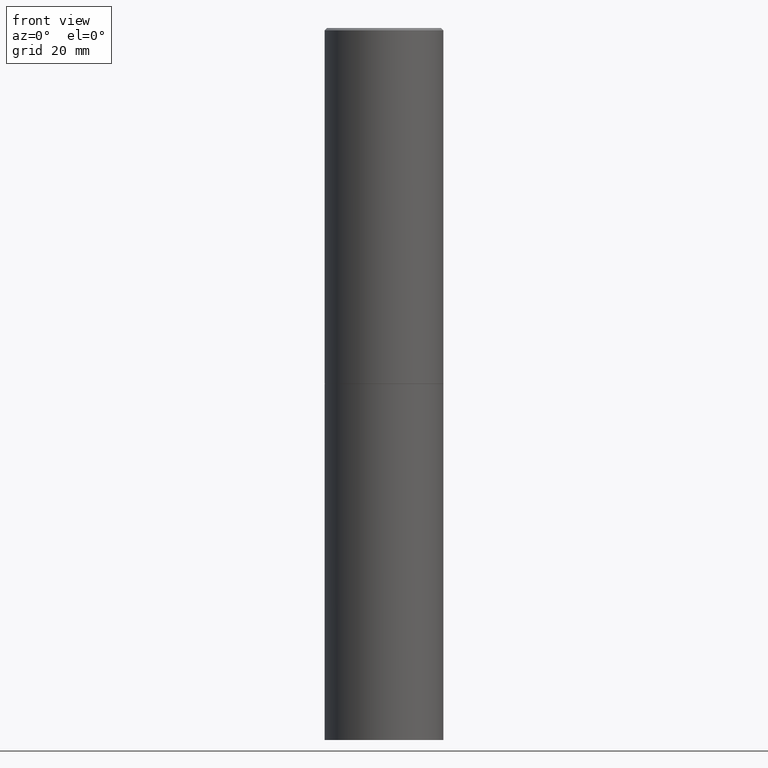
[diagram: clean part render]
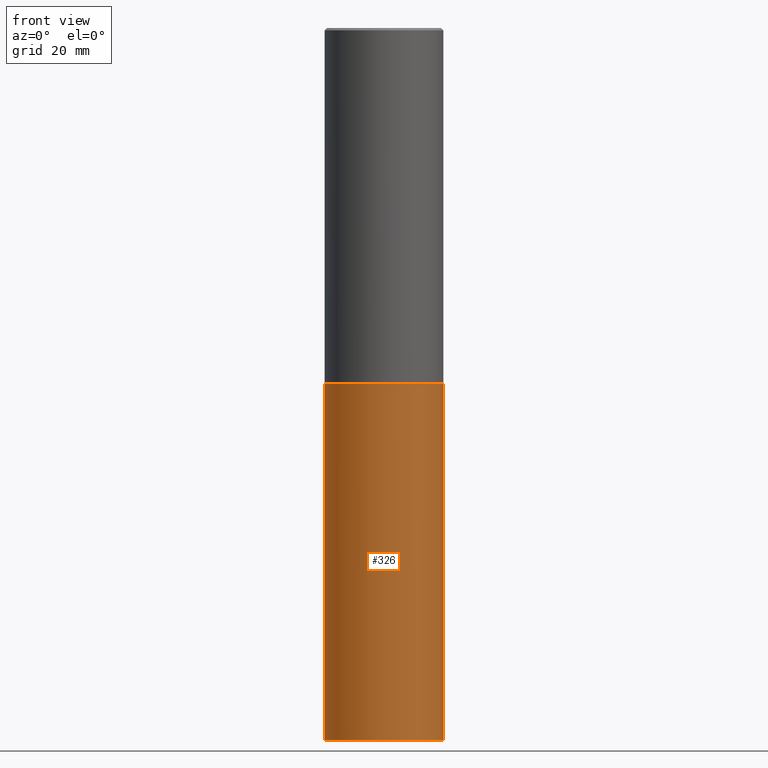
[diagram: same view with one face highlighted and labeled with its STEP entity id]
A machine part, front view. The second image highlights one B-rep face of the part: STEP entity #326.
In plain terms, the highlighted cylindrical surface (partial cylindrical patch) has radius 12.5006 mm, axis along (-0, 0, 1).
Its self-contained STEP definition (entity closure, byte-faithful):
#11 = AXIS2_PLACEMENT_3D ( 'NONE', #327, #305, #74 ) ;
#12 = VERTEX_POINT ( 'NONE', #309 ) ;
#19 = VERTEX_POINT ( 'NONE', #142 ) ;
#23 = AXIS2_PLACEMENT_3D ( 'NONE', #211, #73, #181 ) ;
#66 = CYLINDRICAL_SURFACE ( 'NONE', #23, 0.4921499999999999764 ) ;
#71 = LINE ( 'NONE', #183, #114 ) ;
#72 = FACE_OUTER_BOUND ( 'NONE', #167, .T. ) ;
#73 = DIRECTION ( 'NONE',  ( -2.445468806185136597E-29, 3.491481338843145583E-15, 1.000000000000000000 ) ) ;
#74 = DIRECTION ( 'NONE',  ( 1.000000000000000000, -6.982962677686265922E-15, 0.000000000000000000 ) ) ;
#83 = DIRECTION ( 'NONE',  ( -2.445468806185136877E-29, 3.491481338843145188E-15, 1.000000000000000000 ) ) ;
#114 = VECTOR ( 'NONE', #83, 39.37007874015748143 ) ;
#122 = ORIENTED_EDGE ( 'NONE', *, *, #205, .F. ) ;
#142 = CARTESIAN_POINT ( 'NONE',  ( -0.4921499999999999764, -1.196718392382684217E-14, -2.952700000000000102 ) ) ;
#144 = EDGE_CURVE ( 'NONE', #226, #310, #348, .T. ) ;
#161 = DIRECTION ( 'NONE',  ( 1.000000000000000000, -6.982962677686265922E-15, 0.000000000000000000 ) ) ;
#167 = EDGE_LOOP ( 'NONE', ( #122, #202, #332, #238 ) ) ;
#173 = CARTESIAN_POINT ( 'NONE',  ( -0.4921499999999999764, 3.496936074043332897E-15, -2.420853904668951509E-29 ) ) ;
#174 = EDGE_CURVE ( 'NONE', #19, #12, #208, .T. ) ;
#178 = EDGE_CURVE ( 'NONE', #310, #12, #71, .T. ) ;
#181 = DIRECTION ( 'NONE',  ( 1.000000000000000000, -6.982962677686265922E-15, 4.876176775795935793E-29 ) ) ;
#183 = CARTESIAN_POINT ( 'NONE',  ( 0.4921499999999999764, -3.436665081823295777E-15, 2.399810400207969603E-29 ) ) ;
#199 = CARTESIAN_POINT ( 'NONE',  ( 0.4921499999999999764, -2.405560812836148932E-14, -5.905499999999999972 ) ) ;
#202 = ORIENTED_EDGE ( 'NONE', *, *, #144, .T. ) ;
#205 = EDGE_CURVE ( 'NONE', #226, #19, #313, .T. ) ;
#208 = CIRCLE ( 'NONE', #307, 0.4921499999999999764 ) ;
#211 = CARTESIAN_POINT ( 'NONE',  ( 0.000000000000000000, 0.000000000000000000, 0.000000000000000000 ) ) ;
#216 = DIRECTION ( 'NONE',  ( -2.445468806185136597E-29, 3.491481338843145583E-15, 1.000000000000000000 ) ) ;
#226 = VERTEX_POINT ( 'NONE', #290 ) ;
#238 = ORIENTED_EDGE ( 'NONE', *, *, #174, .F. ) ;
#284 = DIRECTION ( 'NONE',  ( -2.445468806185136877E-29, 3.491481338843145188E-15, 1.000000000000000000 ) ) ;
#290 = CARTESIAN_POINT ( 'NONE',  ( -0.4921499999999999764, -1.196718392382684217E-14, -5.905499999999999972 ) ) ;
#305 = DIRECTION ( 'NONE',  ( -2.445468806185136597E-29, 3.491481338843145583E-15, 1.000000000000000000 ) ) ;
#307 = AXIS2_PLACEMENT_3D ( 'NONE', #365, #216, #161 ) ;
#309 = CARTESIAN_POINT ( 'NONE',  ( 0.4921499999999999764, -1.374596203102545079E-14, -2.952700000000000102 ) ) ;
#310 = VERTEX_POINT ( 'NONE', #199 ) ;
#313 = LINE ( 'NONE', #173, #363 ) ;
#326 = ADVANCED_FACE ( 'NONE', ( #72 ), #66, .T. ) ;
#327 = CARTESIAN_POINT ( 'NONE',  ( 1.444171603492632270E-28, -2.061894304653819197E-14, -5.905499999999999972 ) ) ;
#332 = ORIENTED_EDGE ( 'NONE', *, *, #178, .T. ) ;
#348 = CIRCLE ( 'NONE', #11, 0.4921499999999999764 ) ;
#363 = VECTOR ( 'NONE', #284, 39.37007874015748143 ) ;
#365 = CARTESIAN_POINT ( 'NONE',  ( 7.220735744022852519E-29, -1.030929694920215502E-14, -2.952700000000000102 ) ) ;